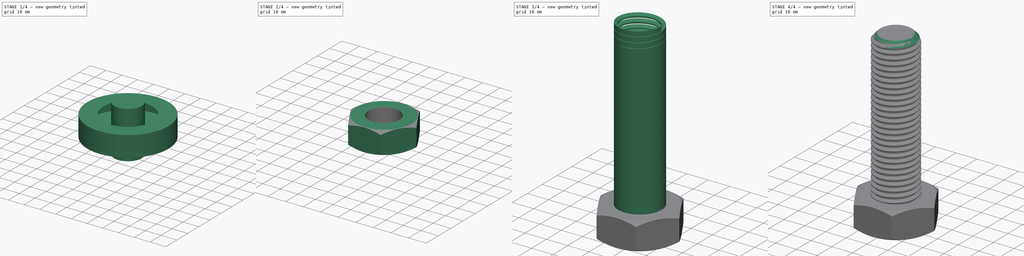
[diagram: build sequence overview — one tinted view per stage of 4, left to right]
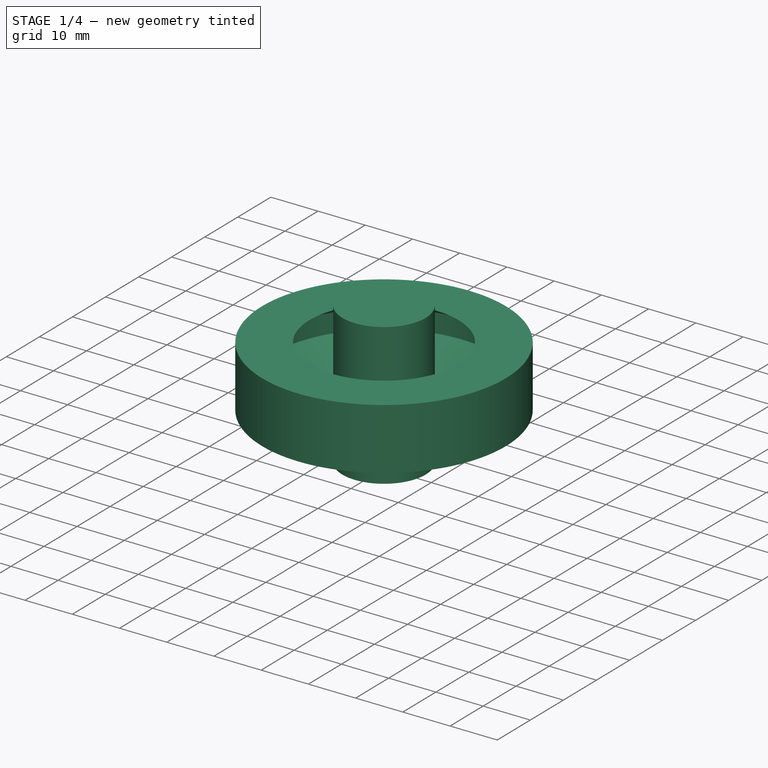
[diagram: stage 1 of 4 — iso view after this stage's code; geometry added in this stage tinted green]
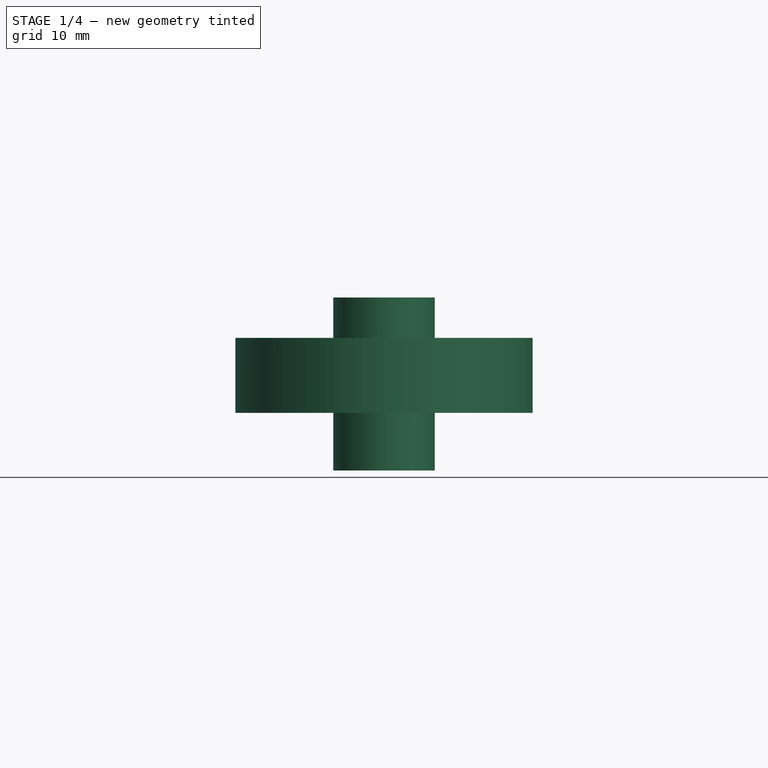
[diagram: stage 1 of 4 — front view after this stage's code; geometry added in this stage tinted green]
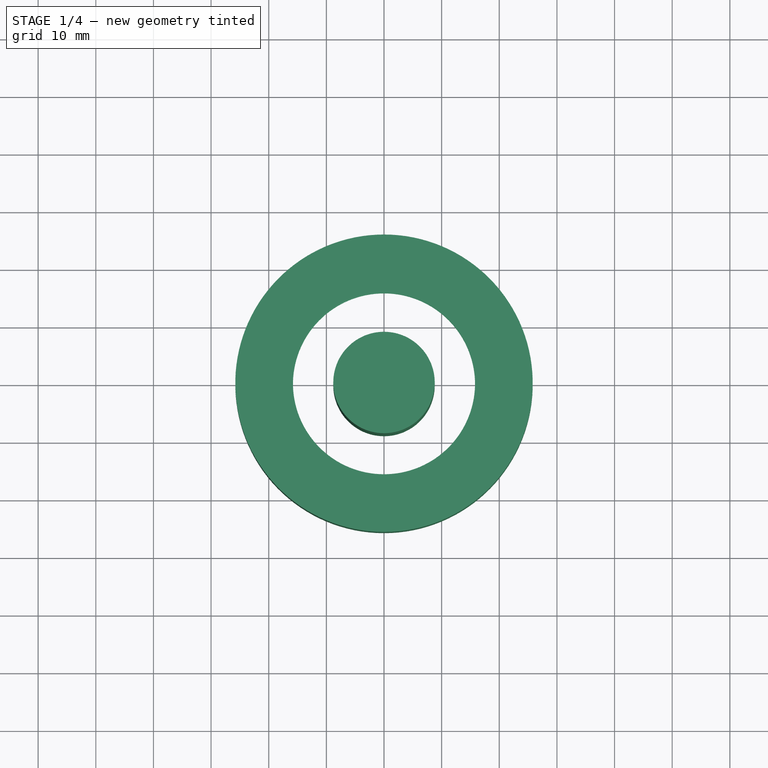
[diagram: stage 1 of 4 — top view after this stage's code; geometry added in this stage tinted green]
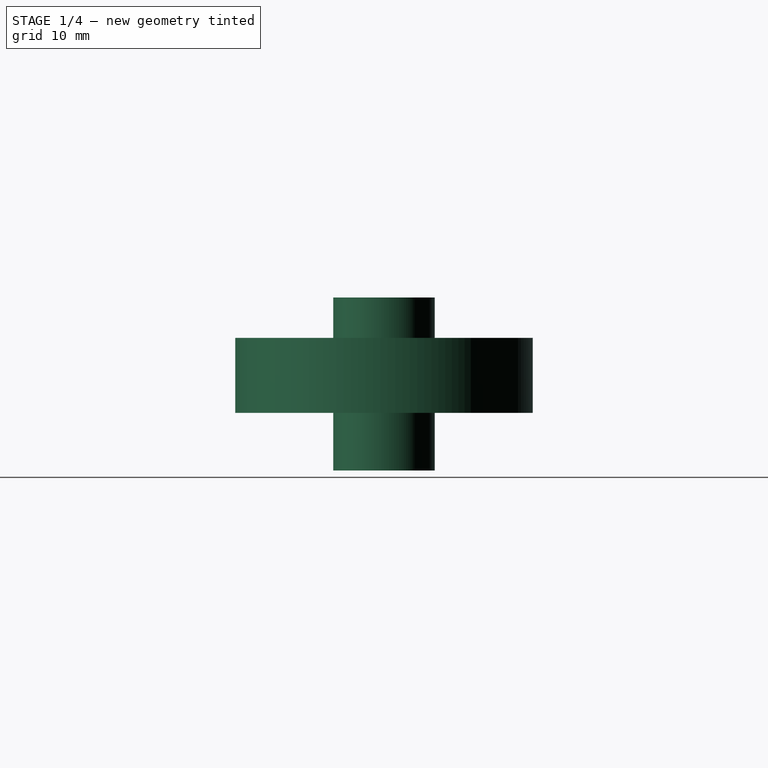
[diagram: stage 1 of 4 — right view after this stage's code; geometry added in this stage tinted green]
FCSTD DOCUMENT  (FreeCAD 0.15R4671 (Git))
Label: tornilloM20
License: CreativeCommons Attribution-ShareAlike
LicenseURL: http://creativecommons.org/licenses/by-sa/4.0/
objects: Sketcher::SketchObject×3, Part::Cut×3, Part::Cylinder×2, PartDesign::Chamfer×2, PartDesign::Pad×1, PartDesign::Revolution×1, Part::Helix×1, Part::Sweep×1
note: 16 computed .brp shape members not serialized (recipe doc carries the construction recipe); baked Part::Feature solids carry a one-line shape summary decoded from their .brp

FEATURE [Sketcher::SketchObject] Sketch001
  Placement = pos=(0,0,0) rot=(0.57735,0.57735,0.57735;2.0944rad)
  sketch-geometry (6):
    g0: LineSegment StartX=23.5942 StartY=8.5 StartZ=0 EndX=15.8 EndY=13 EndZ=0
    g1: LineSegment StartX=23.5942 StartY=8.5 StartZ=0 EndX=23.5942 EndY=4.5 EndZ=0
    g2: LineSegment StartX=23.5942 StartY=4.5 StartZ=0 EndX=15.8 EndY=0 EndZ=0
    g3: LineSegment StartX=15.8 StartY=0 StartZ=0 EndX=25.8 EndY=0 EndZ=0
    g4: LineSegment StartX=25.8 StartY=0 StartZ=0 EndX=25.8 EndY=13 EndZ=0
    g5: LineSegment StartX=25.8 StartY=13 StartZ=0 EndX=15.8 EndY=13 EndZ=0
  constraints (18):
    c: DistanceX(g-1,g0) = 15.8
    c: Angle(g-1,g0) = 2.61799
    c: DistanceY(g-1,g0) = 13
    c: Coincident(g0,g1)
    c: Vertical(g1)
    c: Coincident(g1,g2)
    c: PointOnObject(g2,g-1)
    c: Coincident(g2,g3)
    c: Horizontal(g3)
    c: Coincident(g3,g4)
    c: Vertical(g4)
    c: Coincident(g4,g5)
    c: Coincident(g5,g0)
    c: Horizontal(g5)
    c: Angle(g3,g2) = 0.523599
    c: DistanceX(g-1,g2) = 15.8
    c: DistanceY(g1) = -4
    c: DistanceX(g5) = -10
FEATURE [PartDesign::Revolution] Revolution
  Angle = 360
  Axis = (0,0,1)
  Base = (0,0,0)
  Placement = pos=(0,0,0) rot=(0.57735,0.57735,0.57735;2.0944rad)
  ReferenceAxis = -> Sketch001 [V_Axis]
  Reversed = true
  Sketch = -> Sketch001
FEATURE [Part::Cylinder] Cylinder001  label="Cilindro001"
  Angle = 360
  Height = 30
  Placement = pos=(0,0,-10) rot=(0,0,1;0rad)
  Radius = 8.8
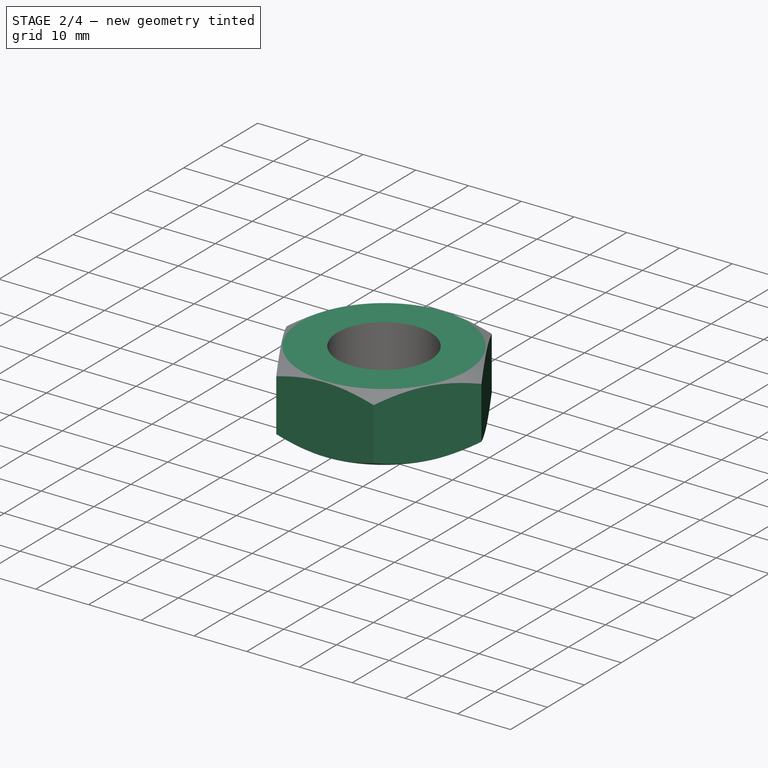
[diagram: stage 2 of 4 — iso view after this stage's code; geometry added in this stage tinted green]
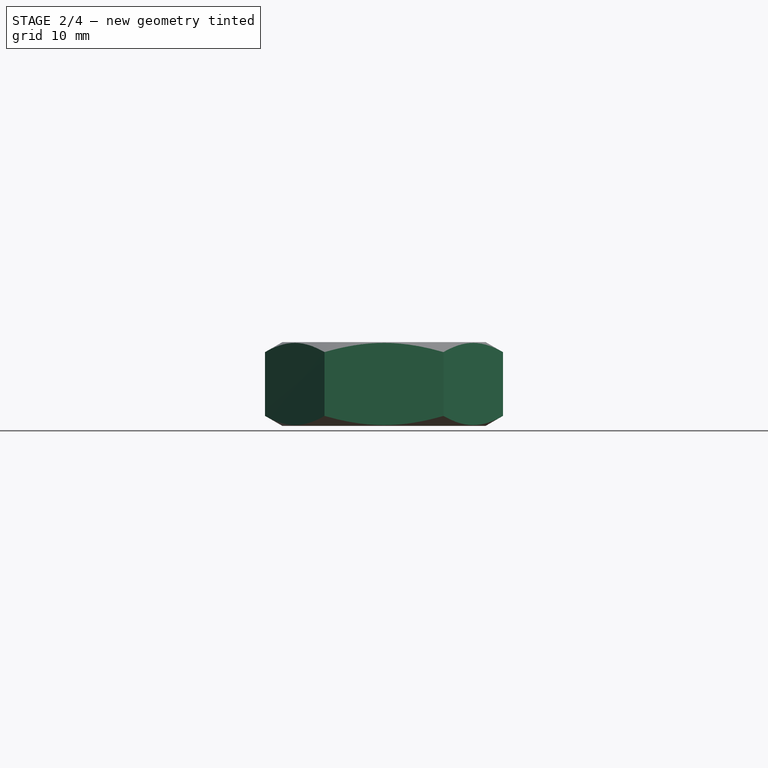
[diagram: stage 2 of 4 — front view after this stage's code; geometry added in this stage tinted green]
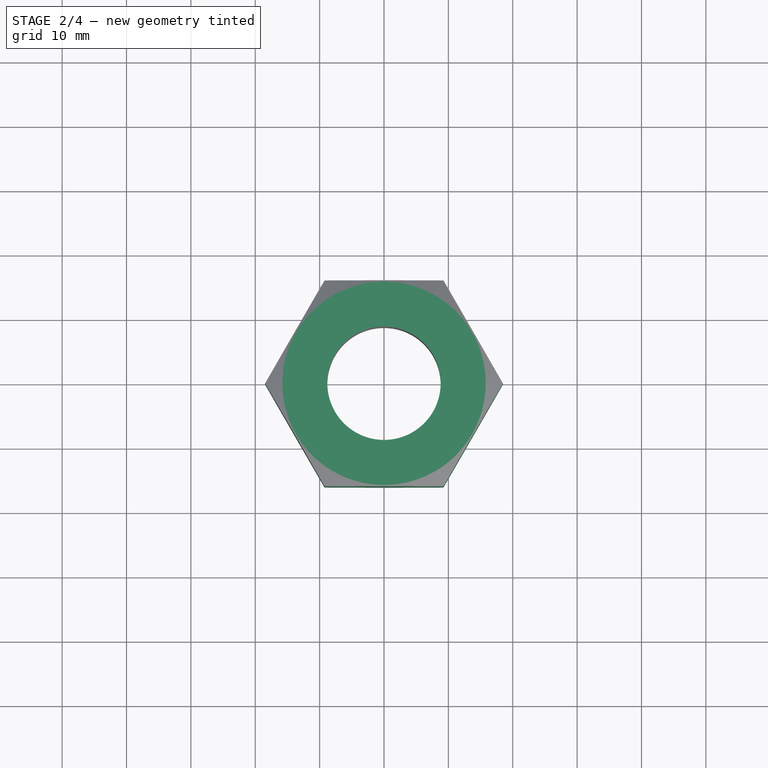
[diagram: stage 2 of 4 — top view after this stage's code; geometry added in this stage tinted green]
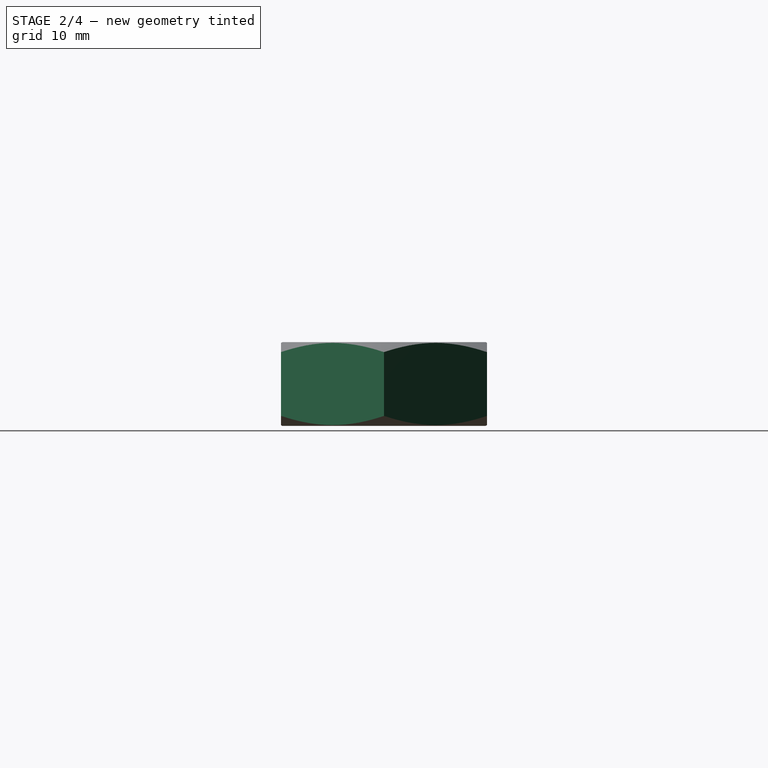
[diagram: stage 2 of 4 — right view after this stage's code; geometry added in this stage tinted green]
FEATURE [Sketcher::SketchObject] Sketch
  sketch-geometry (7):
    g0: LineSegment StartX=9.2376 StartY=16 StartZ=0 EndX=-9.2376 EndY=16 EndZ=0
    g1: LineSegment StartX=-9.2376 StartY=16 StartZ=0 EndX=-18.4752 EndY=0 EndZ=0
    g2: LineSegment StartX=-18.4752 StartY=0 StartZ=0 EndX=-9.2376 EndY=-16 EndZ=0
    g3: LineSegment StartX=-9.2376 StartY=-16 StartZ=0 EndX=9.2376 EndY=-16 EndZ=0
    g4: LineSegment StartX=9.2376 StartY=-16 StartZ=0 EndX=18.4752 EndY=0 EndZ=0
    g5: LineSegment StartX=18.4752 StartY=0 StartZ=0 EndX=9.2376 EndY=16 EndZ=0
    g6: Circle [constr] CenterX=0 CenterY=0 CenterZ=0 NormalX=0 NormalY=0 NormalZ=1 Radius=18.4752
  constraints (17):
    c: Coincident(g0,g1)
    c: Coincident(g1,g2)
    c: Coincident(g2,g3)
    c: Coincident(g3,g4)
    c: Coincident(g4,g5)
    c: Coincident(g5,g0)
    c: Equal(g0, g1-g5) x5
    c: PointOnObject(g0,g6)
    c: PointOnObject(g1,g6)
    c: PointOnObject(g2,g6)
    c: PointOnObject(g3,g6)
    c: PointOnObject(g4,g6)
    c: PointOnObject(g5,g6)
    c: Coincident(g3,g-1)
    c: Horizontal(g0)
    c: DistanceY(g0,g2) = -32
    c: Coincident(g6,g-1)
FEATURE [PartDesign::Pad] Pad
  Length = 13
  Length2 = 100
  Sketch = -> Sketch
  Type = 0
FEATURE [Part::Cut] Cut  label="cabeza"
  Base = -> Pad
  Tool = -> Revolution
FEATURE [Part::Cut] Cut002
  Base = -> Cut
  Tool = -> Cylinder001
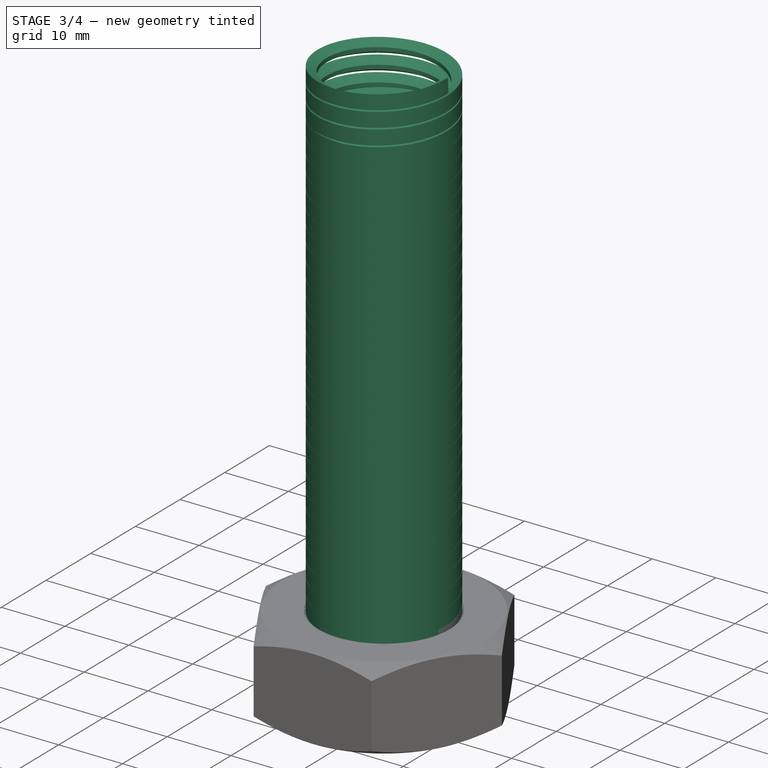
[diagram: stage 3 of 4 — iso view after this stage's code; geometry added in this stage tinted green]
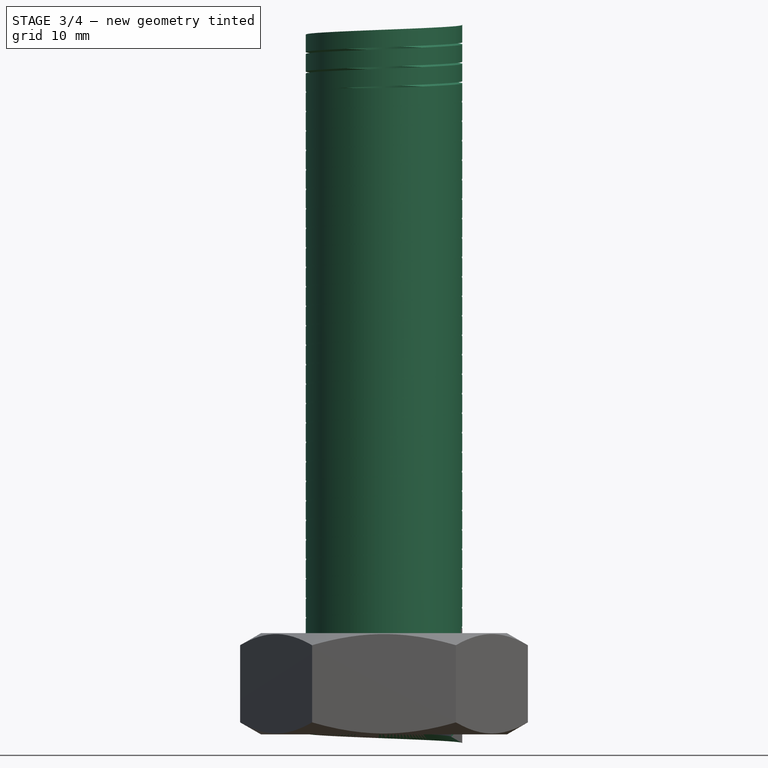
[diagram: stage 3 of 4 — front view after this stage's code; geometry added in this stage tinted green]
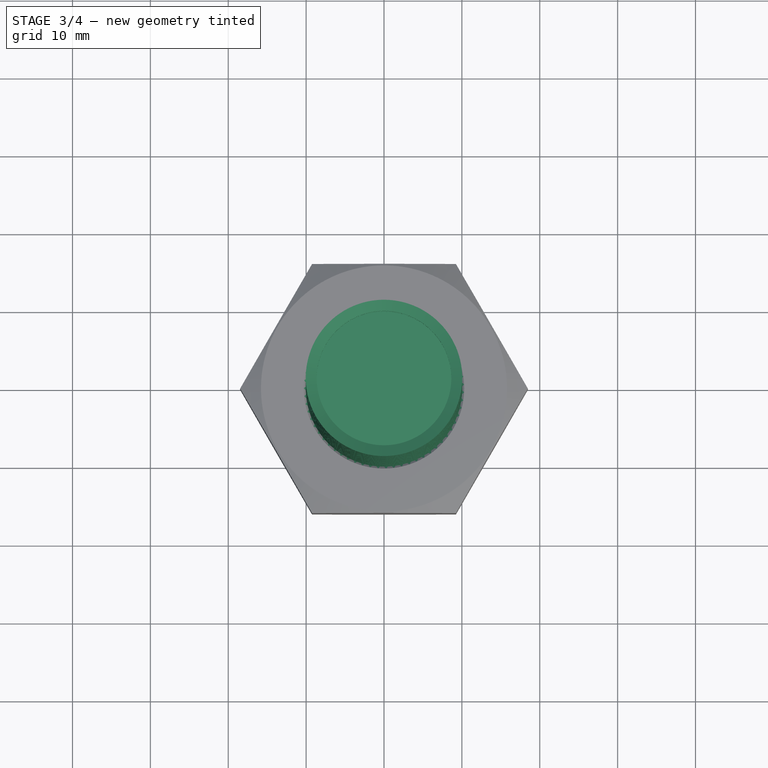
[diagram: stage 3 of 4 — top view after this stage's code; geometry added in this stage tinted green]
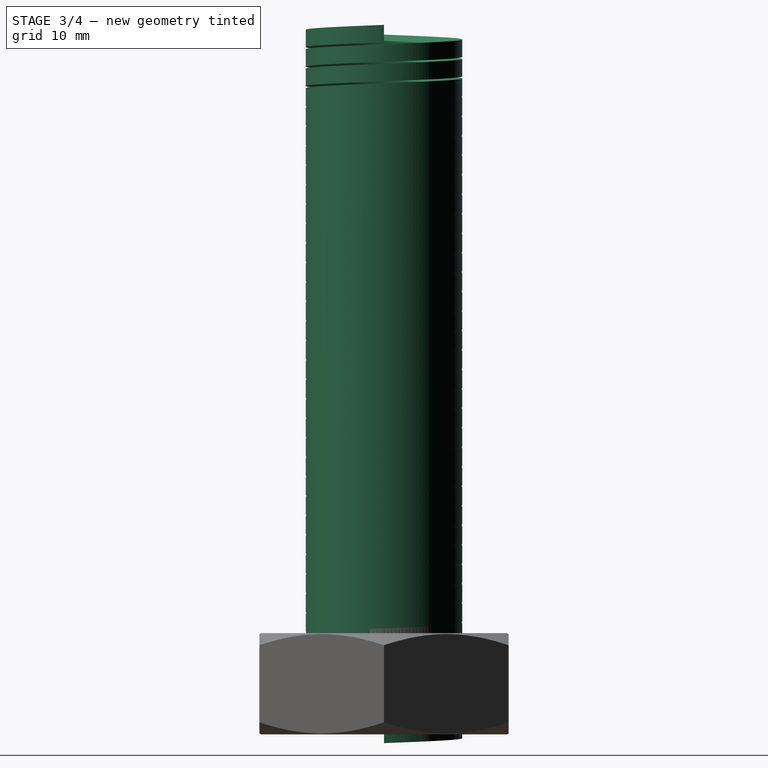
[diagram: stage 3 of 4 — right view after this stage's code; geometry added in this stage tinted green]
FEATURE [Part::Cylinder] Cylinder  label="Cilindro"
  Angle = 360
  Height = 83
  Radius = 10
FEATURE [Part::Helix] Helix  label="Espiral"
  Angle = 0
  Height = 90
  LocalCoord = 0
  Pitch = 2.5
  Radius = 10
  Style = 1
FEATURE [Sketcher::SketchObject] Sketch002
  Placement = pos=(0,0,0) rot=(-1,0,0;4.71239rad)
  sketch-geometry (4):
    g0: LineSegment StartX=8.647 StartY=-0.3125 StartZ=0 EndX=8.647 EndY=0.3125 EndZ=0
    g1: LineSegment StartX=8.647 StartY=0.3125 StartZ=0 EndX=10.05 EndY=1.12252 EndZ=0
    g2: LineSegment StartX=10.05 StartY=1.12252 StartZ=0 EndX=10.05 EndY=-1.12252 EndZ=0
    g3: LineSegment StartX=10.05 StartY=-1.12252 StartZ=0 EndX=8.647 EndY=-0.3125 EndZ=0
  constraints (12):
    c: Vertical(g0)
    c: Coincident(g0,g1)
    c: Coincident(g1,g2)
    c: Vertical(g2)
    c: Coincident(g2,g3)
    c: Coincident(g3,g0)
    c: Angle(g3,g1) = 1.0472
    c: Symmetric(g0,g0,g-1)
    c: DistanceX(g-1,g0) = 8.647
    c: DistanceY(g0) = 0.625
    c: DistanceX(g-1,g2) = 10.05
    c: Symmetric(g2,g1,g-1)
FEATURE [Part::Sweep] Sweep
  Frenet = true
  Sections = -> [Sketch002]
  Solid = true
  Spine = -> Helix
  Transition = 1
FEATURE [PartDesign::Chamfer] Chamfer001
  Base = -> Cut002 [Edge26,Edge25]
  Size = 1.5
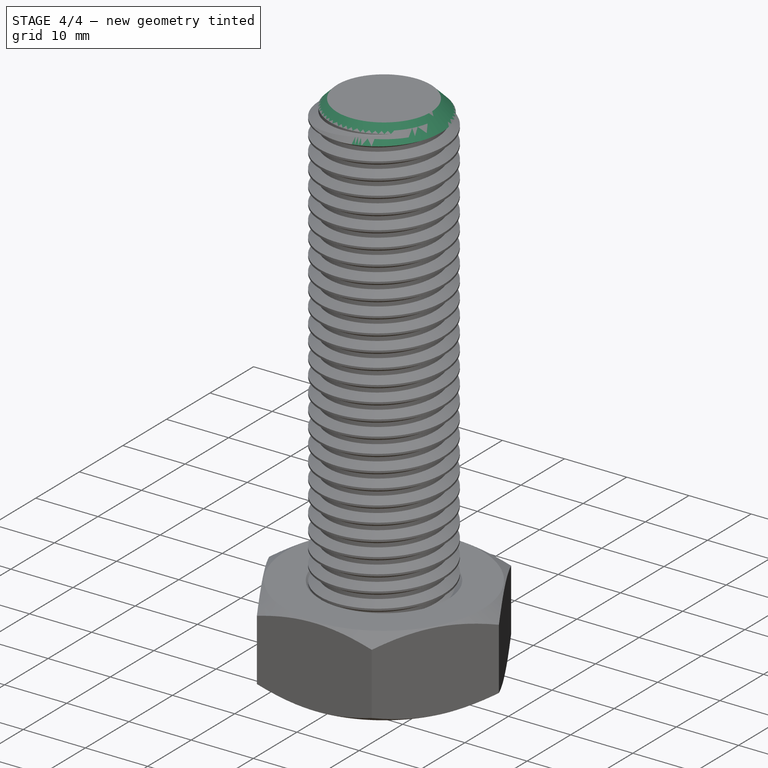
[diagram: stage 4 of 4 — iso view after this stage's code; geometry added in this stage tinted green]
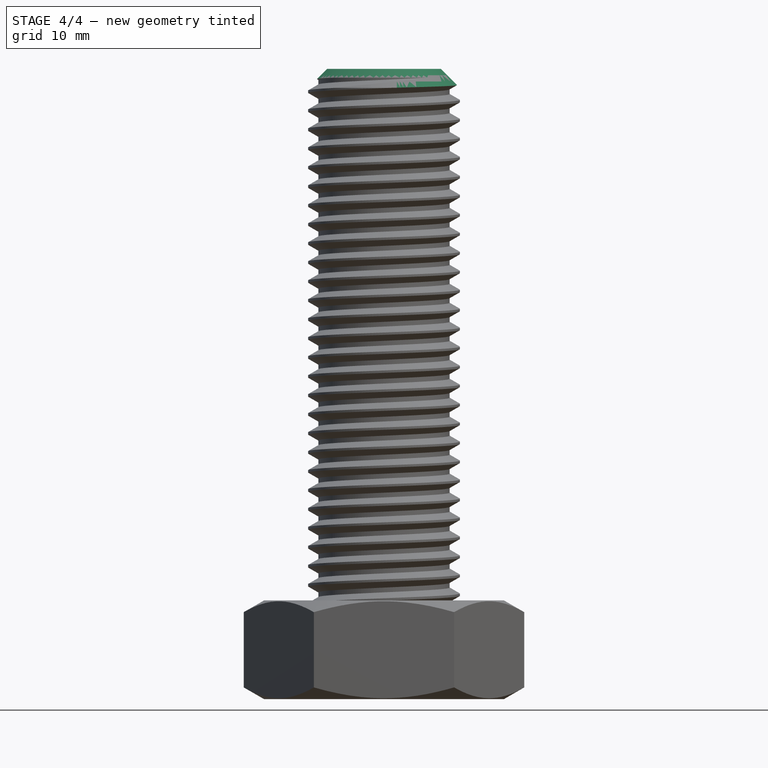
[diagram: stage 4 of 4 — front view after this stage's code; geometry added in this stage tinted green]
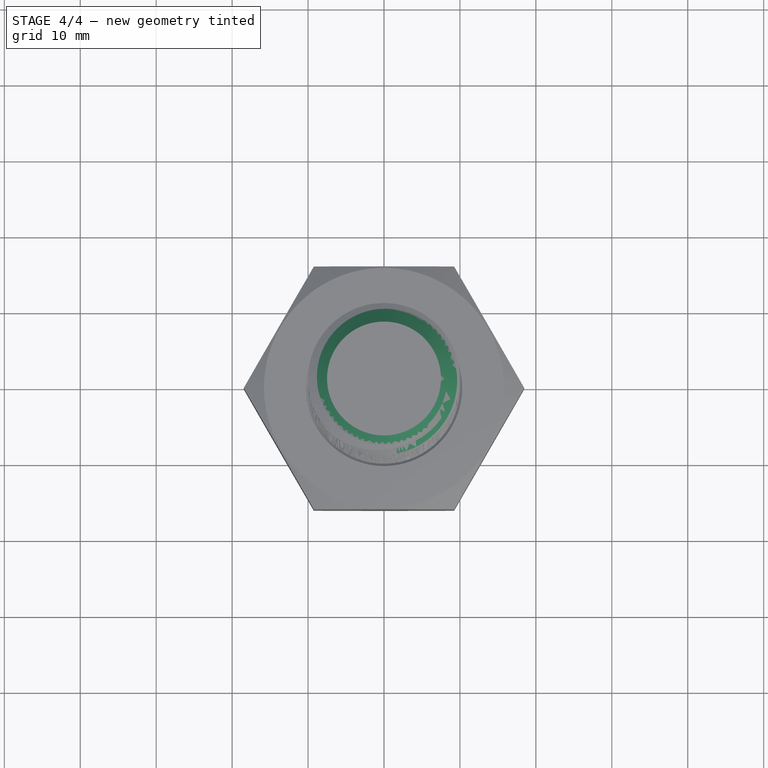
[diagram: stage 4 of 4 — top view after this stage's code; geometry added in this stage tinted green]
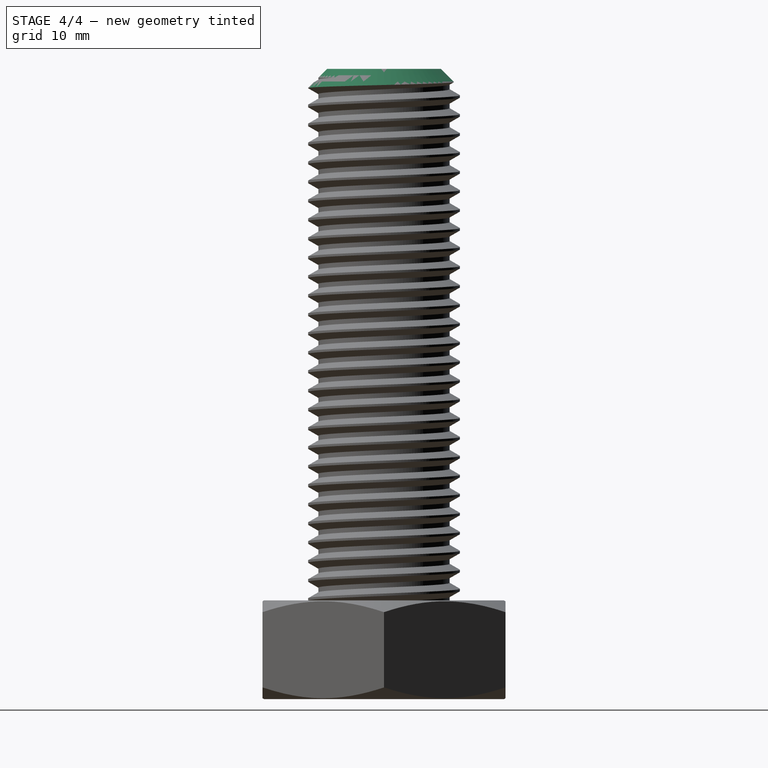
[diagram: stage 4 of 4 — right view after this stage's code; geometry added in this stage tinted green]
FEATURE [PartDesign::Chamfer] Chamfer  label="cuerpo"
  Base = -> Cylinder [Edge1]
  Size = 2.5
FEATURE [Part::Cut] Cut001
  Base = -> Chamfer
  Tool = -> Sweep
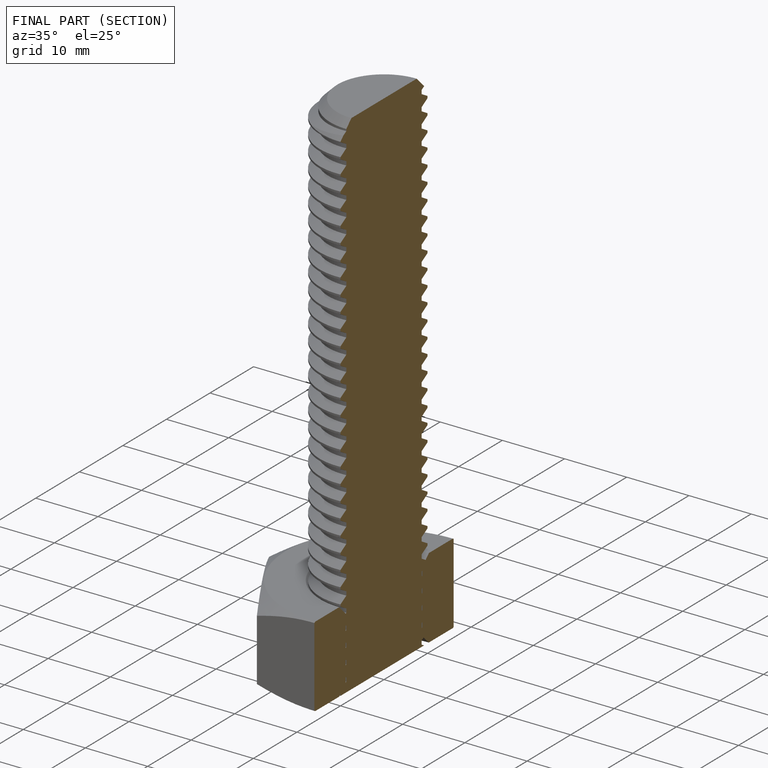
[diagram: finished part — half-section view (interior)]
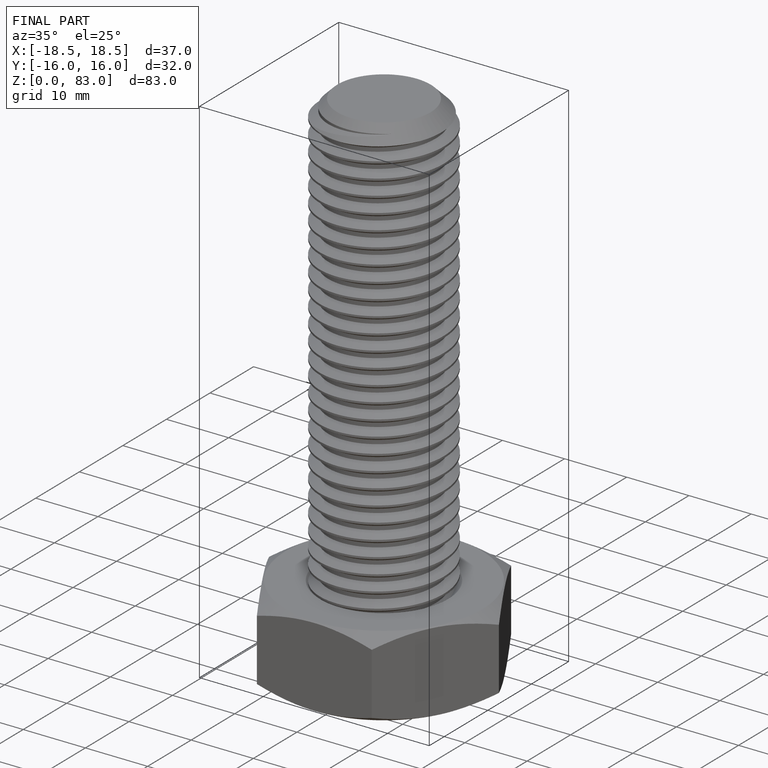
[diagram: finished part — iso view with bounding-box wireframe]
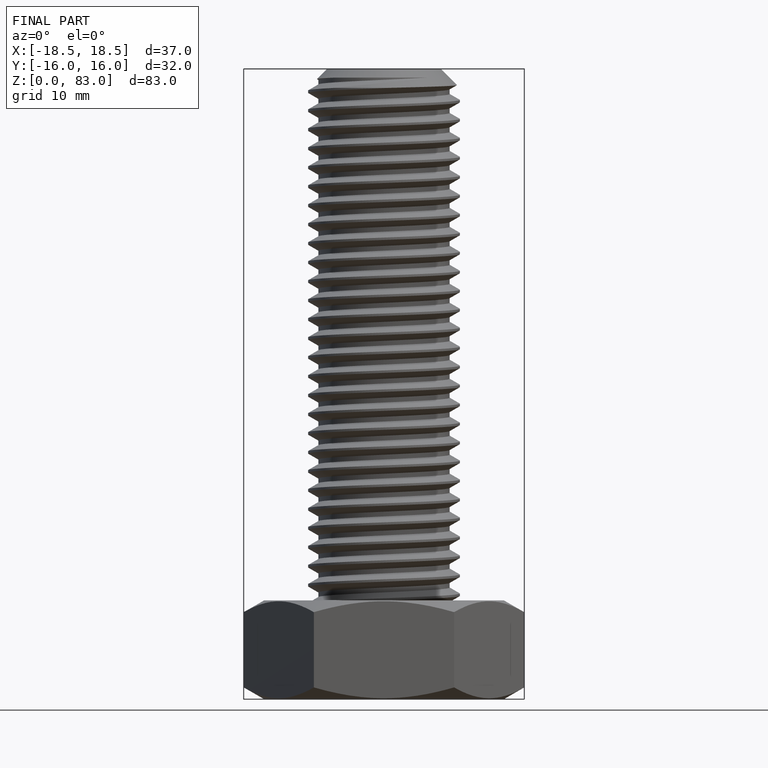
[diagram: finished part — front view with bounding-box wireframe]
